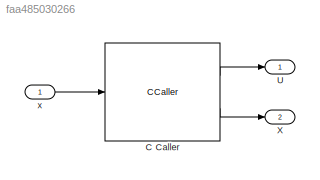
MODEL slx_faa485030266
KIND model
CONFIG AbsTol = auto
CONFIG EnableMultiTasking = off
CONFIG FixedStep = auto
CONFIG MaxStep = auto
CONFIG MinStep = auto
CONFIG RelTol = 1e-3
CONFIG SampleTimeConstraint = Unconstrained
CONFIG Solver = FixedStepDiscrete
CONFIG SolverName = FixedStepDiscrete
CONFIG StartTime = 0.0
CONFIG StopTime = 10.0
BLOCK [CCaller] C Caller
  A = A
  At = At
  B = B
  Bt = Bt
  FunctionName = fmpcsolve
  PortSpecificationStruct = %)30     .    ,"    8    (     @         %    "    !8    !     0         %  0 "0    $    V    07)G3F%M90  4&]R=$YA;64 4V-O<&4     26YD97@     5'EP90      4VEZ90         .    ,     8    (    !          %    "     $    !     0         0  $ 00    X    P    !@    @    $          4    (     0    $    !         !   0!!    #@   $     &    "     0         !0    @    !    "0    $         $     D   !087)A;6...<+10605ch>
  Ports = [1, 2]
  Q = Q
  Qf = Qf
  R = R
  T = T
  eyem = eyem
  eyen = eyen
  kappa = kappa
  m = m
  n = n
  niters = niters
  nz = nz
  z = z
  z0 = z0
  zmax = zmax
  zmin = zmin
BLOCK [Outport] U
  IconDisplay = Port number
BLOCK [Outport] X
  IconDisplay = Port number
  Port = 2
BLOCK [Inport] x
  IconDisplay = Port number
LINE C Caller:1 -> U:1
LINE C Caller:2 -> X:1
LINE x:1 -> C Caller:1
